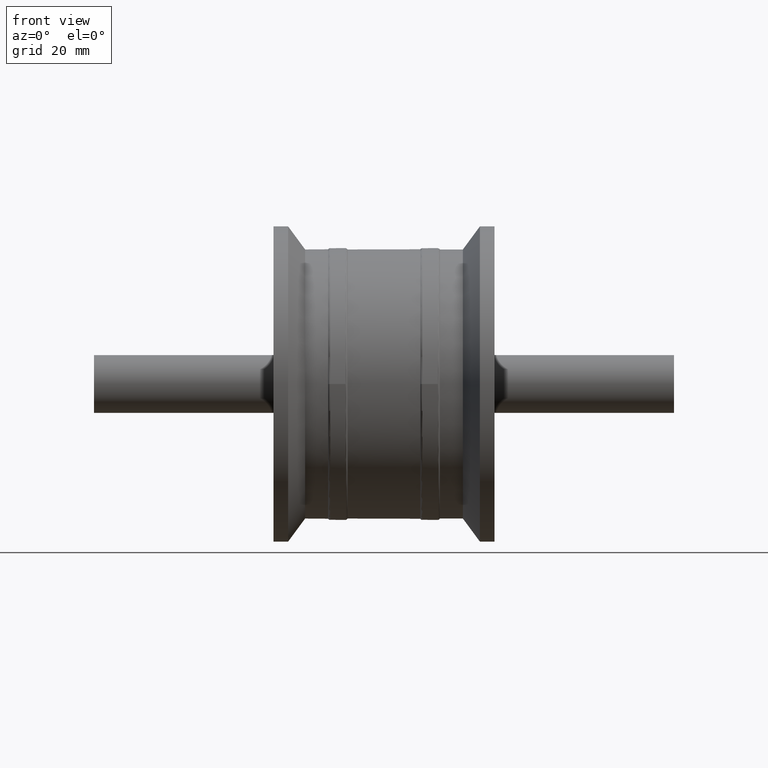
[diagram: clean part render]
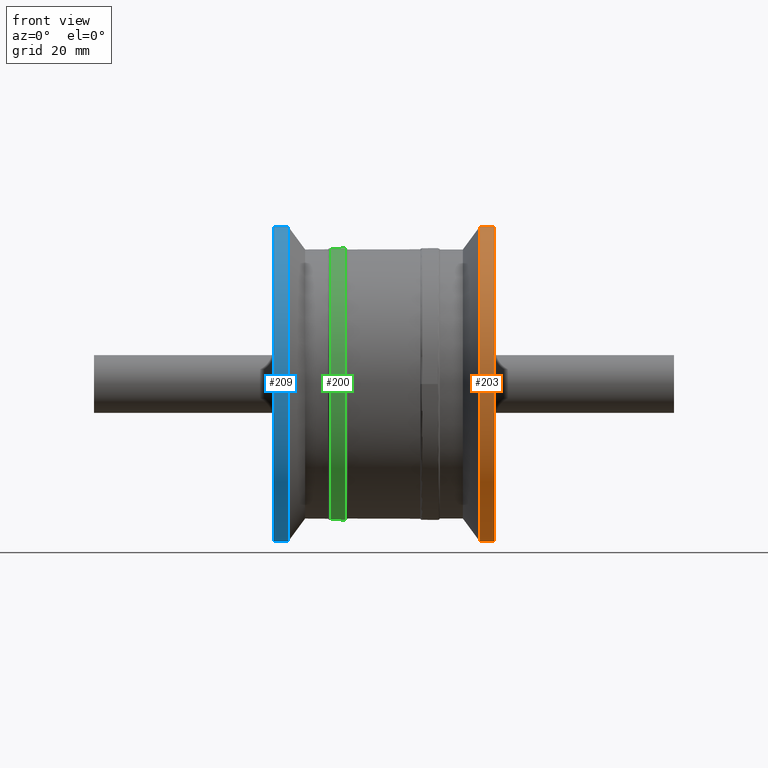
[diagram: same view with three faces highlighted in distinct colors, each labeled with its STEP entity id]
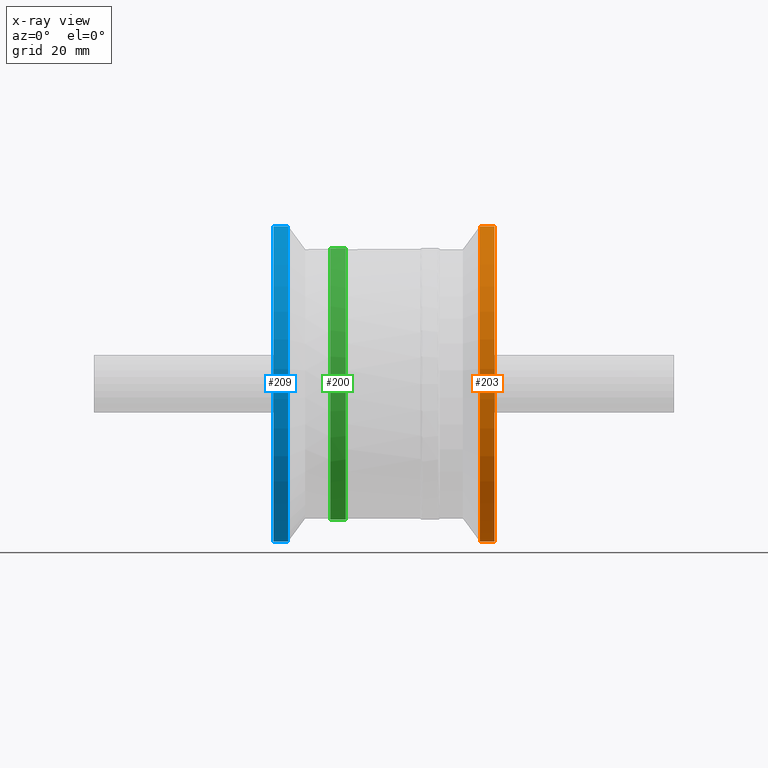
[diagram: x-ray of the same camera — body ghosted, the three highlighted faces saturated]
A machine part, front view with three faces highlighted in distinct colors.
The next image is the same camera in x-ray (body ghosted, the three faces saturated) — at least one of them is partly hidden behind the body in this view.
Their STEP definitions:

[orange] entity #203 — the highlighted cylindrical surface (bore or boss wall) has radius 32.5 mm, axis along (1, 0, 0).
#23=CYLINDRICAL_SURFACE('',#234,32.5);
#37=FACE_BOUND('',#81,.T.);
#54=FACE_OUTER_BOUND('',#80,.T.);
#80=EDGE_LOOP('',(#170));
#81=EDGE_LOOP('',(#171));
#110=CIRCLE('',#232,32.5);
#112=CIRCLE('',#235,32.5);
#128=VERTEX_POINT('',#354);
#130=VERTEX_POINT('',#359);
#146=EDGE_CURVE('',#128,#128,#110,.T.);
#148=EDGE_CURVE('',#130,#130,#112,.T.);
#170=ORIENTED_EDGE('',*,*,#146,.F.);
#171=ORIENTED_EDGE('',*,*,#148,.T.);
#203=ADVANCED_FACE('',(#54,#37),#23,.T.);
#232=AXIS2_PLACEMENT_3D('',#355,#286,#287);
#234=AXIS2_PLACEMENT_3D('',#358,#290,#291);
#235=AXIS2_PLACEMENT_3D('',#360,#292,#293);
#286=DIRECTION('center_axis',(1.,3.16459002187477E-16,0.));
#287=DIRECTION('ref_axis',(0.,0.,-1.));
#290=DIRECTION('center_axis',(1.,3.16459002187477E-16,0.));
#291=DIRECTION('ref_axis',(-3.16459002187477E-16,1.,0.));
#292=DIRECTION('center_axis',(1.,3.16459002187477E-16,0.));
#293=DIRECTION('ref_axis',(0.,0.,-1.));
#354=CARTESIAN_POINT('',(22.75,32.5,0.));
#355=CARTESIAN_POINT('Origin',(22.75,7.19944229976511E-15,0.));
#358=CARTESIAN_POINT('Origin',(21.25,6.72475379648389E-15,0.));
#359=CARTESIAN_POINT('',(19.75,32.5,0.));
#360=CARTESIAN_POINT('Origin',(19.75,6.25006529320267E-15,0.));

[blue] entity #209 — the highlighted cylindrical surface (bore or boss wall) has radius 32.5 mm, axis along (1, 0, 0).
#26=CYLINDRICAL_SURFACE('',#245,32.5);
#42=FACE_BOUND('',#92,.T.);
#60=FACE_OUTER_BOUND('',#91,.T.);
#91=EDGE_LOOP('',(#181));
#92=EDGE_LOOP('',(#182));
#115=CIRCLE('',#243,32.5);
#117=CIRCLE('',#246,32.5);
#133=VERTEX_POINT('',#370);
#135=VERTEX_POINT('',#375);
#151=EDGE_CURVE('',#133,#133,#115,.T.);
#153=EDGE_CURVE('',#135,#135,#117,.T.);
#181=ORIENTED_EDGE('',*,*,#151,.T.);
#182=ORIENTED_EDGE('',*,*,#153,.F.);
#209=ADVANCED_FACE('',(#60,#42),#26,.T.);
#243=AXIS2_PLACEMENT_3D('',#371,#308,#309);
#245=AXIS2_PLACEMENT_3D('',#374,#312,#313);
#246=AXIS2_PLACEMENT_3D('',#376,#314,#315);
#308=DIRECTION('center_axis',(1.,3.16459002187477E-16,0.));
#309=DIRECTION('ref_axis',(0.,0.,-1.));
#312=DIRECTION('center_axis',(1.,3.16459002187477E-16,0.));
#313=DIRECTION('ref_axis',(-3.16459002187477E-16,1.,0.));
#314=DIRECTION('center_axis',(1.,3.16459002187477E-16,0.));
#315=DIRECTION('ref_axis',(0.,0.,-1.));
#370=CARTESIAN_POINT('',(-22.75,32.5,0.));
#371=CARTESIAN_POINT('Origin',(-22.75,-7.19944229976511E-15,0.));
#374=CARTESIAN_POINT('Origin',(-21.25,-6.72475379648389E-15,0.));
#375=CARTESIAN_POINT('',(-19.75,32.5,0.));
#376=CARTESIAN_POINT('Origin',(-19.75,-6.25006529320267E-15,0.));

[green] entity #200 — the highlighted cylindrical surface (bore or boss wall) has radius 28 mm, axis along (1, 0, 0).
#22=CYLINDRICAL_SURFACE('',#227,28.);
#34=FACE_BOUND('',#75,.T.);
#51=FACE_OUTER_BOUND('',#74,.T.);
#74=EDGE_LOOP('',(#164));
#75=EDGE_LOOP('',(#165));
#106=CIRCLE('',#225,28.);
#108=CIRCLE('',#228,28.);
#124=VERTEX_POINT('',#343);
#126=VERTEX_POINT('',#348);
#142=EDGE_CURVE('',#124,#124,#106,.T.);
#144=EDGE_CURVE('',#126,#126,#108,.T.);
#164=ORIENTED_EDGE('',*,*,#144,.F.);
#165=ORIENTED_EDGE('',*,*,#142,.F.);
#200=ADVANCED_FACE('',(#51,#34),#22,.T.);
#225=AXIS2_PLACEMENT_3D('',#344,#272,#273);
#227=AXIS2_PLACEMENT_3D('',#347,#276,#277);
#228=AXIS2_PLACEMENT_3D('',#349,#278,#279);
#272=DIRECTION('center_axis',(1.,3.22973970800045E-16,-1.19813571377914E-33));
#273=DIRECTION('ref_axis',(-3.22973970800045E-16,1.,-1.83905063098507E-16));
#276=DIRECTION('center_axis',(1.,3.16459002187477E-16,0.));
#277=DIRECTION('ref_axis',(-3.16459002187477E-16,1.,0.));
#278=DIRECTION('center_axis',(-1.,-3.22973970800045E-16,1.19813571377914E-33));
#279=DIRECTION('ref_axis',(-3.22973970800045E-16,1.,-1.83905063098507E-16));
#343=CARTESIAN_POINT('',(-7.93301270189221,-28.,1.72033072914561E-15));
#344=CARTESIAN_POINT('Origin',(-7.93301270189222,-2.51047328398139E-15,
-1.93483324518297E-49));
#347=CARTESIAN_POINT('Origin',(-9.49999999999999,-3.00636052078103E-15,
0.));
#348=CARTESIAN_POINT('',(-11.0669872981078,-28.,8.57835280437079E-15));
#349=CARTESIAN_POINT('Origin',(-11.0669872981078,-3.50224775758067E-15,
-1.93483324518297E-49));